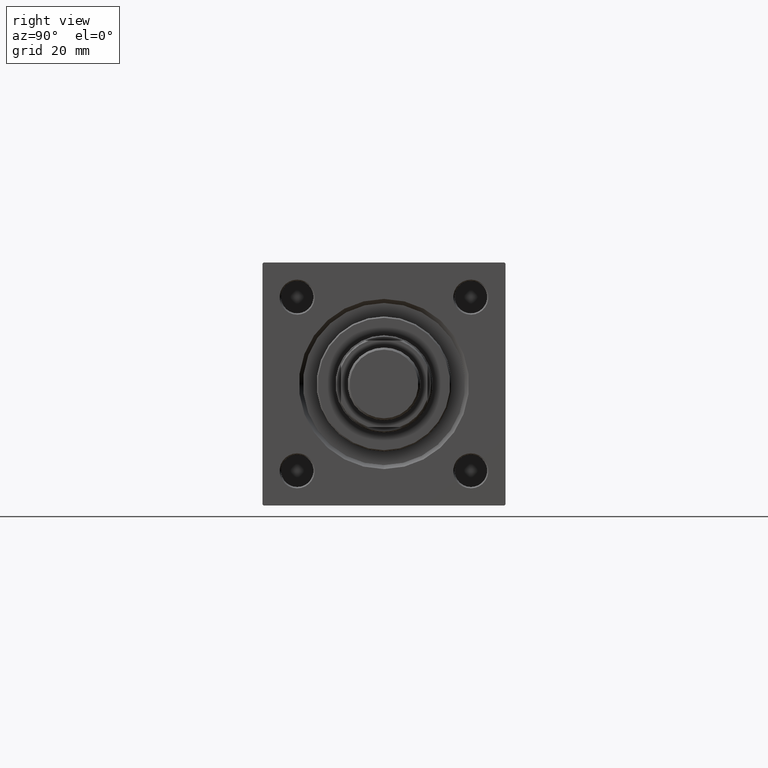
[diagram: clean part render]
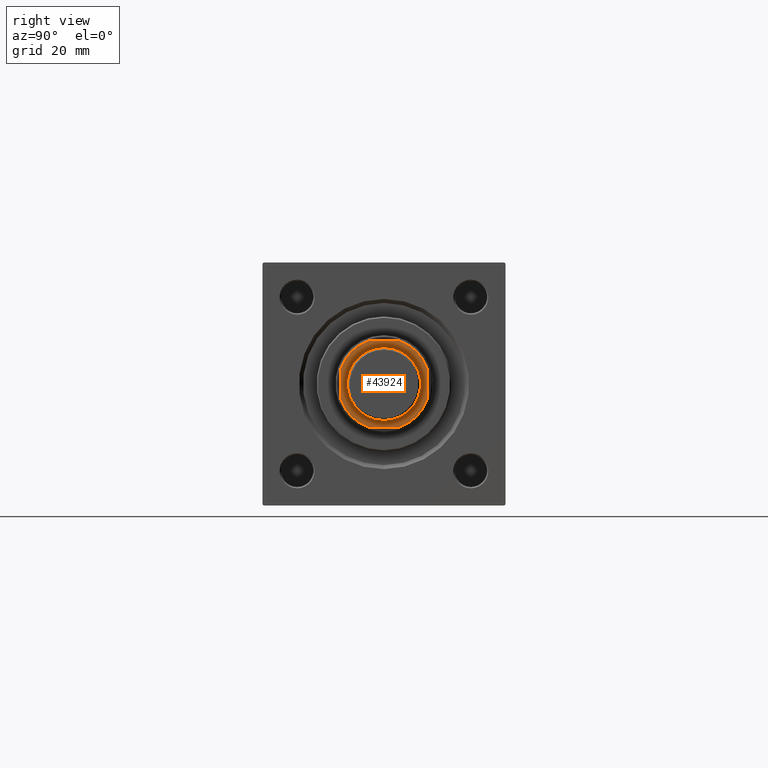
[diagram: same view with one face highlighted and labeled with its STEP entity id]
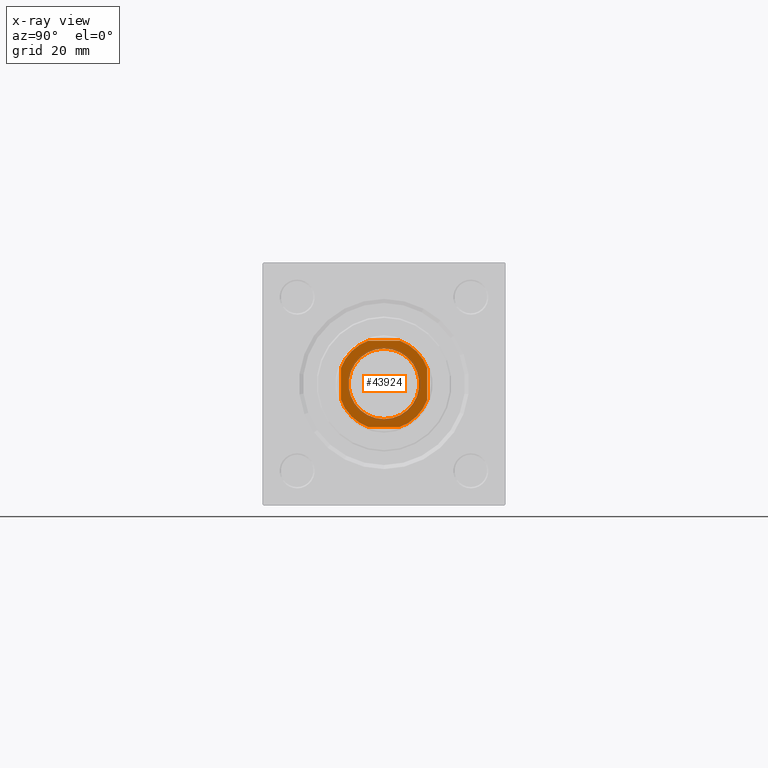
[diagram: x-ray of the same camera — body ghosted, the highlighted face saturated]
A machine part, right view. The second image highlights one B-rep face of the part: STEP entity #43924.
The next image is the same camera in x-ray: the body ghosted, the highlighted face saturated — about 11% of this face is hidden behind the body in this view.
In plain terms, the highlighted planar face has unit normal (1, 0, -0).
Its self-contained STEP definition (entity closure, byte-faithful):
#348 = CARTESIAN_POINT ( 'NONE',  ( 0.000000000000000000, 0.000000000000000000, 150.0000000000000284 ) ) ;
#1066 = ORIENTED_EDGE ( 'NONE', *, *, #30934, .T. ) ;
#2841 = DIRECTION ( 'NONE',  ( -1.000000000000000000, -0.000000000000000000, -0.000000000000000000 ) ) ;
#2960 = CARTESIAN_POINT ( 'NONE',  ( 0.000000000000000000, 0.000000000000000000, 150.0000000000000284 ) ) ;
#3319 = DIRECTION ( 'NONE',  ( 1.000000000000000000, 0.000000000000000000, 0.000000000000000000 ) ) ;
#3425 = AXIS2_PLACEMENT_3D ( 'NONE', #348, #26708, #42371 ) ;
#3925 = LINE ( 'NONE', #19526, #23220 ) ;
#5458 = DIRECTION ( 'NONE',  ( 1.000000000000000000, 0.000000000000000000, 0.000000000000000000 ) ) ;
#5587 = ORIENTED_EDGE ( 'NONE', *, *, #32891, .T. ) ;
#6989 = CARTESIAN_POINT ( 'NONE',  ( 0.000000000000000000, 0.000000000000000000, 150.0000000000000284 ) ) ;
#7335 = DIRECTION ( 'NONE',  ( 1.000000000000000000, 0.000000000000000000, 0.000000000000000000 ) ) ;
#8728 = VERTEX_POINT ( 'NONE', #45948 ) ;
#9277 = EDGE_CURVE ( 'NONE', #26423, #16855, #28196, .T. ) ;
#9607 = DIRECTION ( 'NONE',  ( 1.084202172485504434E-16, -1.000000000000000000, 0.000000000000000000 ) ) ;
#9857 = AXIS2_PLACEMENT_3D ( 'NONE', #17910, #49204, #3319 ) ;
#10116 = DIRECTION ( 'NONE',  ( 0.000000000000000000, -0.000000000000000000, -1.000000000000000000 ) ) ;
#10181 = CARTESIAN_POINT ( 'NONE',  ( -16.00000000000000000, -5.744562646537911377, 150.0000000000000284 ) ) ;
#10363 = DIRECTION ( 'NONE',  ( 1.000000000000000000, 0.000000000000000000, 0.000000000000000000 ) ) ;
#10490 = LINE ( 'NONE', #30233, #29091 ) ;
#10527 = EDGE_CURVE ( 'NONE', #47335, #8728, #3925, .T. ) ;
#12386 = CARTESIAN_POINT ( 'NONE',  ( 5.744562646537962003, -16.00000000000000000, 150.0000000000000284 ) ) ;
#12937 = LINE ( 'NONE', #28588, #32511 ) ;
#14753 = LINE ( 'NONE', #15011, #49144 ) ;
#15011 = CARTESIAN_POINT ( 'NONE',  ( -16.00000000000000000, -16.00000000000000000, 150.0000000000000284 ) ) ;
#15742 = EDGE_CURVE ( 'NONE', #38999, #20995, #10490, .T. ) ;
#16130 = CARTESIAN_POINT ( 'NONE',  ( -13.04999999999996341, 1.598164072887291238E-15, 150.0000000000000284 ) ) ;
#16855 = VERTEX_POINT ( 'NONE', #16130 ) ;
#17606 = EDGE_CURVE ( 'NONE', #8728, #38999, #34895, .T. ) ;
#17910 = CARTESIAN_POINT ( 'NONE',  ( 0.000000000000000000, 0.000000000000000000, 150.0000000000000284 ) ) ;
#18276 = EDGE_CURVE ( 'NONE', #16855, #26423, #38767, .T. ) ;
#18760 = DIRECTION ( 'NONE',  ( -2.168404344971008868E-16, 1.000000000000000000, -0.000000000000000000 ) ) ;
#19526 = CARTESIAN_POINT ( 'NONE',  ( 16.00000000000000000, 16.00000000000000000, 150.0000000000000284 ) ) ;
#20195 = ORIENTED_EDGE ( 'NONE', *, *, #17606, .T. ) ;
#20503 = PLANE ( 'NONE',  #49984 ) ;
#20994 = CARTESIAN_POINT ( 'NONE',  ( 0.000000000000000000, 0.000000000000000000, 150.0000000000000284 ) ) ;
#20995 = VERTEX_POINT ( 'NONE', #45212 ) ;
#21672 = CARTESIAN_POINT ( 'NONE',  ( -5.744562646537909600, -16.00000000000000000, 150.0000000000000284 ) ) ;
#22659 = VERTEX_POINT ( 'NONE', #22767 ) ;
#22767 = CARTESIAN_POINT ( 'NONE',  ( -16.00000000000000355, 5.744562646538194706, 150.0000000000000284 ) ) ;
#23220 = VECTOR ( 'NONE', #18760, 1000.000000000000000 ) ;
#24364 = FACE_BOUND ( 'NONE', #29973, .T. ) ;
#24375 = CIRCLE ( 'NONE', #48934, 17.00000000000005684 ) ;
#24604 = FACE_OUTER_BOUND ( 'NONE', #34259, .T. ) ;
#25486 = CIRCLE ( 'NONE', #3425, 16.99999999999996092 ) ;
#25792 = VERTEX_POINT ( 'NONE', #21672 ) ;
#26423 = VERTEX_POINT ( 'NONE', #46636 ) ;
#26708 = DIRECTION ( 'NONE',  ( -0.000000000000000000, 0.000000000000000000, 1.000000000000000000 ) ) ;
#26762 = DIRECTION ( 'NONE',  ( 0.000000000000000000, -0.000000000000000000, -1.000000000000000000 ) ) ;
#28196 = CIRCLE ( 'NONE', #48649, 13.04999999999996341 ) ;
#28398 = VERTEX_POINT ( 'NONE', #10181 ) ;
#28588 = CARTESIAN_POINT ( 'NONE',  ( -16.00000000000000355, 16.00000000000000000, 150.0000000000000284 ) ) ;
#29091 = VECTOR ( 'NONE', #2841, 1000.000000000000000 ) ;
#29451 = CARTESIAN_POINT ( 'NONE',  ( 5.744562646537880291, 16.00000000000000000, 150.0000000000000284 ) ) ;
#29541 = DIRECTION ( 'NONE',  ( 1.000000000000000000, 0.000000000000000000, 0.000000000000000000 ) ) ;
#29682 = ORIENTED_EDGE ( 'NONE', *, *, #48640, .T. ) ;
#29711 = ORIENTED_EDGE ( 'NONE', *, *, #44007, .T. ) ;
#29973 = EDGE_LOOP ( 'NONE', ( #33666, #50459 ) ) ;
#30233 = CARTESIAN_POINT ( 'NONE',  ( -16.00000000000000355, 16.00000000000000000, 150.0000000000000284 ) ) ;
#30934 = EDGE_CURVE ( 'NONE', #22659, #28398, #12937, .T. ) ;
#31998 = CIRCLE ( 'NONE', #9857, 16.99999999999997868 ) ;
#32511 = VECTOR ( 'NONE', #9607, 1000.000000000000000 ) ;
#32891 = EDGE_CURVE ( 'NONE', #20995, #22659, #24375, .T. ) ;
#33215 = CARTESIAN_POINT ( 'NONE',  ( 0.000000000000000000, 0.000000000000000000, 150.0000000000000284 ) ) ;
#33229 = AXIS2_PLACEMENT_3D ( 'NONE', #40588, #44689, #5458 ) ;
#33666 = ORIENTED_EDGE ( 'NONE', *, *, #9277, .T. ) ;
#34220 = DIRECTION ( 'NONE',  ( 1.000000000000000000, 0.000000000000000000, 0.000000000000000000 ) ) ;
#34259 = EDGE_LOOP ( 'NONE', ( #34705, #20195, #46511, #5587, #1066, #29682, #42654, #29711 ) ) ;
#34705 = ORIENTED_EDGE ( 'NONE', *, *, #10527, .T. ) ;
#34895 = CIRCLE ( 'NONE', #33229, 16.99999999999995026 ) ;
#36184 = DIRECTION ( 'NONE',  ( 1.000000000000000000, 0.000000000000000000, 0.000000000000000000 ) ) ;
#37930 = AXIS2_PLACEMENT_3D ( 'NONE', #2960, #26762, #34220 ) ;
#38767 = CIRCLE ( 'NONE', #37930, 13.04999999999996341 ) ;
#38999 = VERTEX_POINT ( 'NONE', #29451 ) ;
#40522 = DIRECTION ( 'NONE',  ( -0.000000000000000000, 0.000000000000000000, 1.000000000000000000 ) ) ;
#40588 = CARTESIAN_POINT ( 'NONE',  ( 0.000000000000000000, 0.000000000000000000, 150.0000000000000284 ) ) ;
#42371 = DIRECTION ( 'NONE',  ( 1.000000000000000000, 0.000000000000000000, 0.000000000000000000 ) ) ;
#42654 = ORIENTED_EDGE ( 'NONE', *, *, #42996, .T. ) ;
#42996 = EDGE_CURVE ( 'NONE', #25792, #50328, #14753, .T. ) ;
#43924 = ADVANCED_FACE ( 'NONE', ( #24364, #24604 ), #20503, .T. ) ;
#44007 = EDGE_CURVE ( 'NONE', #50328, #47335, #31998, .T. ) ;
#44689 = DIRECTION ( 'NONE',  ( -0.000000000000000000, 0.000000000000000000, 1.000000000000000000 ) ) ;
#45192 = DIRECTION ( 'NONE',  ( -0.000000000000000000, 0.000000000000000000, 1.000000000000000000 ) ) ;
#45212 = CARTESIAN_POINT ( 'NONE',  ( -5.744562646538198258, 16.00000000000000000, 150.0000000000000284 ) ) ;
#45948 = CARTESIAN_POINT ( 'NONE',  ( 16.00000000000000355, 5.744562646537874961, 150.0000000000000284 ) ) ;
#46511 = ORIENTED_EDGE ( 'NONE', *, *, #15742, .T. ) ;
#46636 = CARTESIAN_POINT ( 'NONE',  ( 13.04999999999996341, 0.000000000000000000, 150.0000000000000284 ) ) ;
#47335 = VERTEX_POINT ( 'NONE', #50101 ) ;
#48640 = EDGE_CURVE ( 'NONE', #28398, #25792, #25486, .T. ) ;
#48649 = AXIS2_PLACEMENT_3D ( 'NONE', #33215, #10116, #10363 ) ;
#48934 = AXIS2_PLACEMENT_3D ( 'NONE', #6989, #45192, #29541 ) ;
#49144 = VECTOR ( 'NONE', #7335, 1000.000000000000000 ) ;
#49204 = DIRECTION ( 'NONE',  ( -0.000000000000000000, 0.000000000000000000, 1.000000000000000000 ) ) ;
#49984 = AXIS2_PLACEMENT_3D ( 'NONE', #20994, #40522, #36184 ) ;
#50101 = CARTESIAN_POINT ( 'NONE',  ( 16.00000000000000355, -5.744562646537949568, 150.0000000000000284 ) ) ;
#50328 = VERTEX_POINT ( 'NONE', #12386 ) ;
#50459 = ORIENTED_EDGE ( 'NONE', *, *, #18276, .T. ) ;